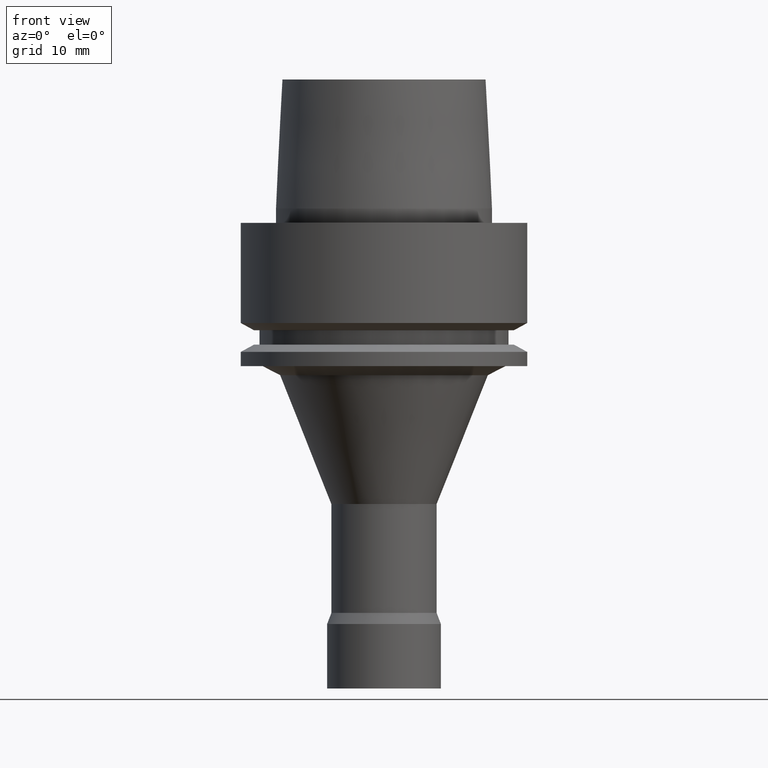
[diagram: clean part render]
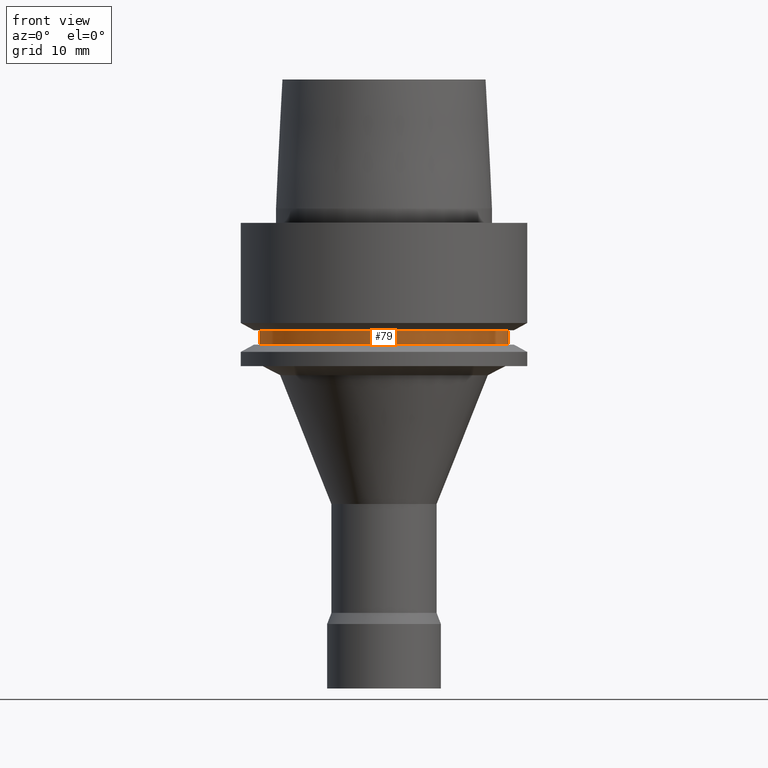
[diagram: same view with one face highlighted and labeled with its STEP entity id]
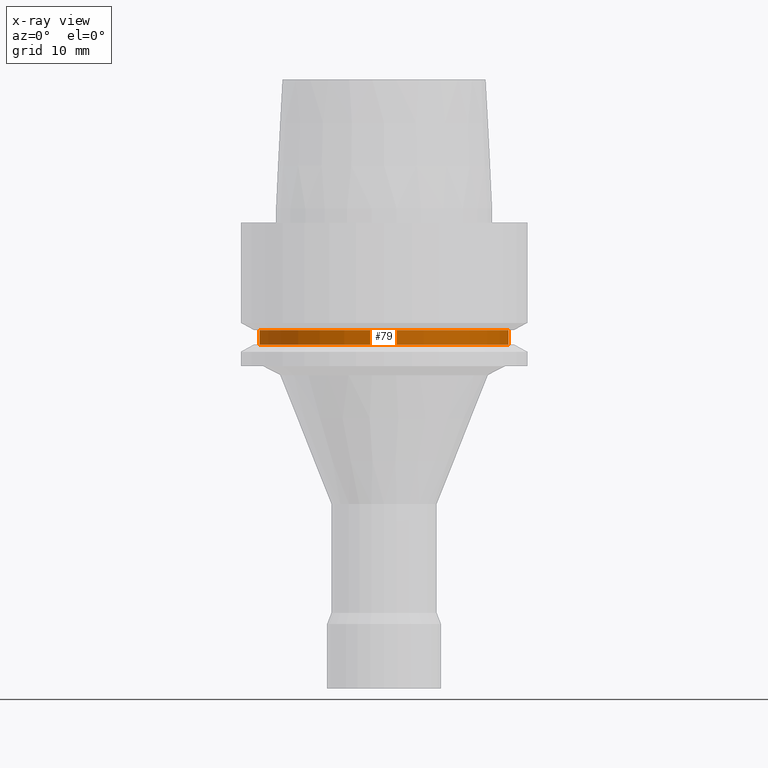
[diagram: x-ray of the same camera — body ghosted, the highlighted face saturated]
A machine part, front view. The second image highlights one B-rep face of the part: STEP entity #79.
The next image is the same camera in x-ray: the body ghosted, the highlighted face saturated — about 0% of this face is hidden behind the body in this view.
In plain terms, the highlighted cylindrical surface (bore or boss wall) has radius 17.4 mm, axis along (-0, -0, 1).
Its self-contained STEP definition (entity closure, byte-faithful):
#79=ADVANCED_FACE('',(#106,#107),#108,.T.);
#106=FACE_BOUND('',#158,.T.);
#107=FACE_BOUND('',#159,.T.);
#108=CYLINDRICAL_SURFACE('',#160,17.4);
#158=EDGE_LOOP('',(#218));
#159=EDGE_LOOP('',(#219));
#160=AXIS2_PLACEMENT_3D('',#220,#221,#222);
#218=ORIENTED_EDGE('',*,*,#291,.F.);
#219=ORIENTED_EDGE('',*,*,#290,.T.);
#220=CARTESIAN_POINT('',(9.79717439317883E-016,1.95943487863576E-015,-16.0));
#221=DIRECTION('',(-6.12323399573677E-017,-1.22464679914735E-016,1.0));
#222=DIRECTION('',(-1.23259516440783E-032,1.0,1.22464679914735E-016));
#290=EDGE_CURVE('',#311,#311,#312,.T.);
#291=EDGE_CURVE('',#313,#313,#314,.T.);
#311=VERTEX_POINT('',#345);
#312=CIRCLE('',#346,17.4);
#313=VERTEX_POINT('',#347);
#314=CIRCLE('',#348,17.4);
#345=CARTESIAN_POINT('',(9.18485099360515E-016,17.4,-15.0));
#346=AXIS2_PLACEMENT_3D('',#383,#384,#385);
#347=CARTESIAN_POINT('',(1.04094977927525E-015,17.4,-17.0));
#348=AXIS2_PLACEMENT_3D('',#386,#387,#388);
#383=CARTESIAN_POINT('',(9.18485099360515E-016,1.83697019872103E-015,-15.0));
#384=DIRECTION('',(6.12323399573677E-017,1.22464679914735E-016,-1.0));
#385=DIRECTION('',(-1.23259516440783E-032,1.0,1.22464679914735E-016));
#386=CARTESIAN_POINT('',(1.04094977927525E-015,2.0818995585505E-015,-17.0));
#387=DIRECTION('',(6.12323399573677E-017,1.22464679914735E-016,-1.0));
#388=DIRECTION('',(-1.23259516440783E-032,1.0,1.22464679914735E-016));